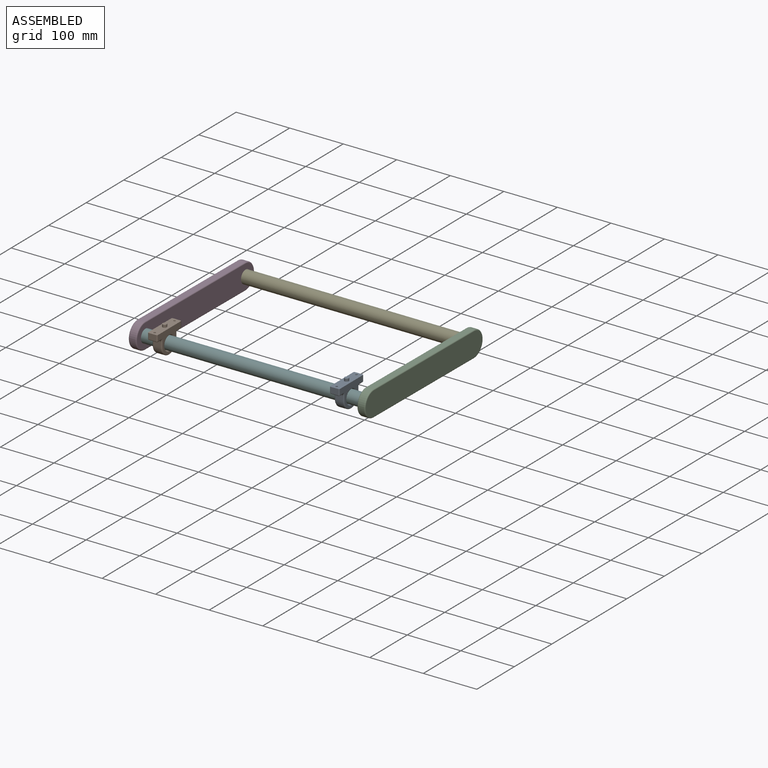
[diagram: assembled view]
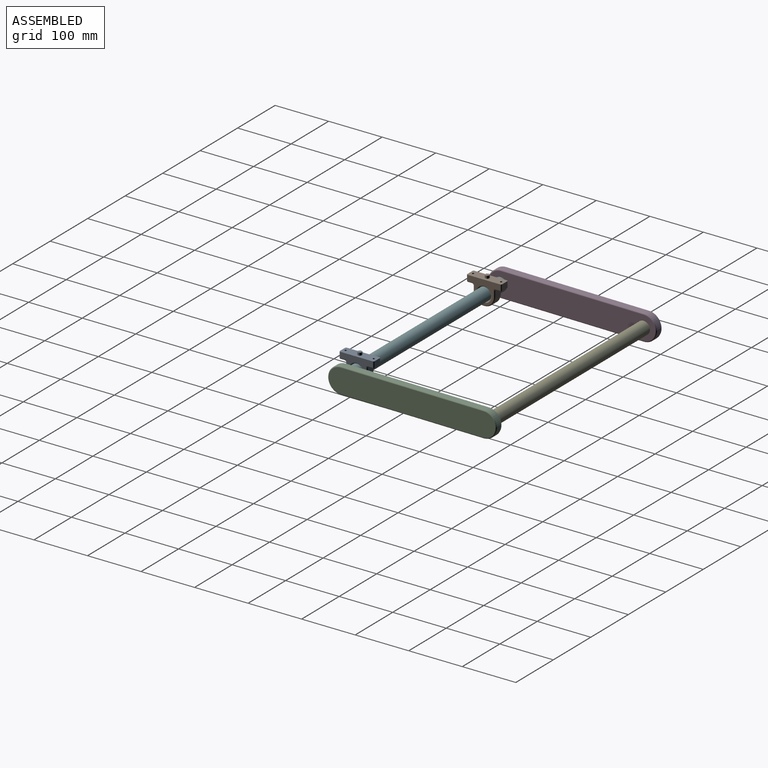
[diagram: assembled view, second angle]
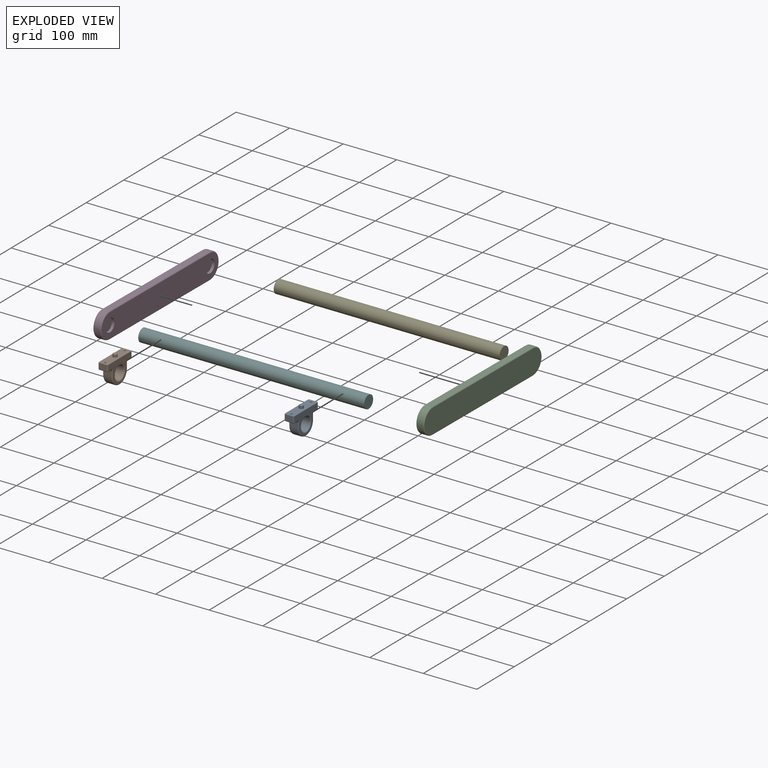
[diagram: exploded view]
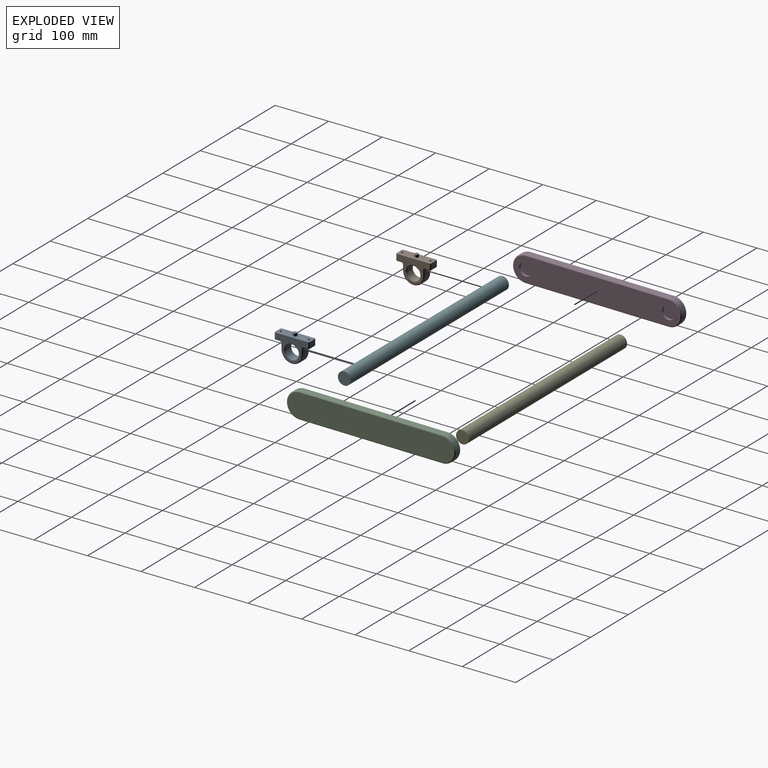
[diagram: exploded view, second angle]
ASSEMBLY  parts=6 mates=3
PART A: 49 faces, bbox 65x18x51.6 mm
  f0: plane 65x18mm, normal (0,0,-1), area 1091.2mm2, adj f1,f7,f9,f10,f11,f13,f14,f19
  f1: plane 14x10.5mm, normal (1,0,0), area 147mm2, adj f0,f25,f30,f31
  f2: plane 14x6.5mm, normal (0,0,1), area 48.9mm2, adj f15,f26,f31,f35,f45,f47
  f3: plane 14x8.9mm, normal (1,0,0), area 120.3mm2, adj f4,f22,f36,f45,f46,f47
  f4: cylinder r=20mm len=40mm, axis (0,1,0), area 879.6mm2, adj f3,f5,f20,f34
  f5: plane 14x8.9mm, normal (-1,0,0), area 120.3mm2, adj f4,f17,f32,f40,f41,f42
  f6: plane 14x6.5mm, normal (0,0,1), area 48.9mm2, adj f16,f18,f23,f29,f40,f42
  f7: plane 14x10.5mm, normal (-1,0,0), area 147mm2, adj f0,f19,f23,f24
  f8: cylinder r=12.5mm len=25mm, axis (0,1,0), area 1099.6mm2, adj f37,f38
  f9: plane 61x43mm, normal (0,-1,0), area 1010.9mm2, adj f0,f17,f18,f19,f20,f22,f25,f26
  f10: plane 61x43mm, normal (0,1,0), area 1010.9mm2, adj f0,f24,f29,f30,f32,f34,f35,f36
  f11: cylinder r=4mm len=8mm, axis (0,0,1), area 125.7mm2, adj f0,f12
  f12: plane 8x8mm, normal (0,0,-1), area 50.3mm2, adj f11
  f13: cylinder r=2mm len=10.5mm, axis (0,0,1), area 131.9mm2, adj f0,f16
  f14: cylinder r=2mm len=10.5mm, axis (0,0,1), area 131.9mm2, adj f0,f15
  f15: cone r=2mm half-angle=45deg, axis (0,0,1), area 53.3mm2, adj f2,f14,f46
  f16: cone r=2mm half-angle=45deg, axis (0,0,1), area 53.3mm2, adj f6,f13,f41
  f17: cylinder r=2mm len=14.5mm, axis (0,0,1), area 33.6mm2, adj f5,f9,f20,f43
  f18: cylinder r=2mm len=12.5mm, axis (1,0,0), area 27.3mm2, adj f6,f9,f21,f43
  f19: cylinder r=2mm len=10.5mm, axis (0,0,1), area 33mm2, adj f0,f7,f9,f21
  f20: torus R=18mm, axis (0,-1,0), area 190.2mm2, adj f4,f9,f17,f22
  f21: sphere r=2mm, area 6.3mm2, adj f18,f19,f23
  f22: cylinder r=2mm len=14.5mm, axis (0,0,-1), area 33.6mm2, adj f3,f9,f20,f48
  f23: cylinder r=2mm len=14mm, axis (0,1,0), area 44mm2, adj f6,f7,f21,f27
  f24: cylinder r=2mm len=10.5mm, axis (0,0,-1), area 33mm2, adj f0,f7,f10,f27
  f25: cylinder r=2mm len=10.5mm, axis (0,0,-1), area 33mm2, adj f0,f1,f9,f28
  f26: cylinder r=2mm len=12.5mm, axis (1,0,0), area 27.3mm2, adj f2,f9,f28,f48
  f27: sphere r=2mm, area 6.3mm2, adj f23,f24,f29
  f28: sphere r=2mm, area 6.3mm2, adj f25,f26,f31
  f29: cylinder r=2mm len=12.5mm, axis (-1,0,0), area 27.3mm2, adj f6,f10,f27,f39
  f30: cylinder r=2mm len=10.5mm, axis (0,0,1), area 33mm2, adj f0,f1,f10,f33
  f31: cylinder r=2mm len=14mm, axis (0,1,0), area 44mm2, adj f1,f2,f28,f33
  f32: cylinder r=2mm len=14.5mm, axis (0,0,-1), area 33.6mm2, adj f5,f10,f34,f39
  f33: sphere r=2mm, area 6.3mm2, adj f30,f31,f35
  f34: torus R=18mm, axis (0,-1,0), area 190.2mm2, adj f4,f10,f32,f36
  f35: cylinder r=2mm len=12.5mm, axis (-1,0,0), area 27.3mm2, adj f2,f10,f33,f44
  f36: cylinder r=2mm len=14.5mm, axis (0,0,1), area 33.6mm2, adj f3,f10,f34,f44
  f37: torus R=14.5mm, axis (0,-1,0), area 261.1mm2, adj f8,f10
  f38: torus R=14.5mm, axis (0,-1,0), area 261.1mm2, adj f8,f9
  f39: bspline ~6x6mm, area 16mm2, adj f29,f32,f40
  f40: cylinder r=4mm len=4mm, axis (0,-1,0), area 23.2mm2, adj f5,f6,f39,f41
  f41: bspline ~7.75x4.36mm, area 33.5mm2, adj f5,f16,f40,f42
  f42: cylinder r=4mm len=4mm, axis (0,-1,0), area 23.2mm2, adj f5,f6,f41,f43
  f43: bspline ~6x6mm, area 16.4mm2, adj f17,f18,f42
  f44: bspline ~6x6mm, area 16.4mm2, adj f35,f36,f45
  f45: cylinder r=4mm len=4mm, axis (0,1,0), area 23.2mm2, adj f2,f3,f44,f46
  f46: bspline ~7.75x4.36mm, area 33.5mm2, adj f3,f15,f45,f47
  f47: cylinder r=4mm len=4mm, axis (0,1,0), area 23.2mm2, adj f2,f3,f46,f48
  f48: bspline ~6x6mm, area 16.4mm2, adj f22,f26,f47
PART B: same geometry as A
PART C: 18 faces, bbox 15x319x52 mm
  f0: plane 267x11mm, normal (0,0,1), area 2937mm2, adj f1,f3,f10,f14
  f1: cylinder r=24mm len=48mm, axis (-1,0,0), area 829.4mm2, adj f0,f2,f12,f16
  f2: plane 267x11mm, normal (0,0,-1), area 2937mm2, adj f1,f3,f13,f17
  f3: cylinder r=24mm len=48mm, axis (-1,0,0), area 829.4mm2, adj f0,f2,f11,f15
  f4: plane 311x44mm, normal (1,0,0), area 12363.8mm2, adj f6,f8,f14,f15,f16,f17
  f5: plane 311x44mm, normal (-1,0,0), area 13268.5mm2, adj f10,f11,f12,f13
  f6: cylinder r=12mm len=24mm, axis (1,0,0), area 377mm2, adj f4,f7
  f7: plane 24x24mm, normal (1,0,0), area 452.4mm2, adj f6
  f8: cylinder r=12mm len=24mm, axis (1,0,0), area 377mm2, adj f4,f9
  f9: plane 24x24mm, normal (1,0,0), area 452.4mm2, adj f8
  f10: cylinder r=2mm len=267mm, axis (0,-1,0), area 838.8mm2, adj f0,f5,f11,f12
  f11: torus R=22mm, axis (1,0,0), area 229.7mm2, adj f3,f5,f10,f13
  f12: torus R=22mm, axis (1,0,0), area 229.7mm2, adj f1,f5,f10,f13
  f13: cylinder r=2mm len=267mm, axis (0,1,0), area 838.8mm2, adj f2,f5,f11,f12
  f14: cylinder r=2mm len=267mm, axis (0,1,0), area 838.8mm2, adj f0,f4,f15,f16
  f15: torus R=22mm, axis (1,0,0), area 229.7mm2, adj f3,f4,f14,f17
  f16: torus R=22mm, axis (1,0,0), area 229.7mm2, adj f1,f4,f14,f17
  f17: cylinder r=2mm len=267mm, axis (0,-1,0), area 838.8mm2, adj f2,f4,f15,f16
PART D: same geometry as C
PART E: 3 faces, bbox 422x24x24 mm
  f0: cylinder r=12mm len=422mm, axis (-1,0,0), area 31818.1mm2, adj f1,f2
  f1: plane 24x24mm, normal (1,0,0), area 452.4mm2, adj f0
  f2: plane 24x24mm, normal (-1,0,0), area 452.4mm2, adj f0
PART F: same geometry as E
PLACE A rot(axis=(0.71,-0.71,0),180deg) t=(159.86,296.75,-20.14)mm
PLACE B rot(axis=(0.71,-0.71,0),180deg) t=(-180.14,296.75,-20.14)mm fixed
PLACE C rot(axis=(0,-1,0),180deg) t=(220.09,431.68,-23.62)mm
PLACE D rot(axis=(-1,0,0),0.5deg) t=(-221.91,431.68,-23.62)mm
PLACE E rot(axis=(-1,0,0),0.5deg) t=(-211.91,563.62,-24.77)mm
PLACE F rot(axis=(-1,0,0),0.5deg) t=(-211.91,296.63,-22.44)mm
MATE fastened C.f3 <-> E.f0  axis (-1,0,0) through (210.09,563.62,-24.77)mm
MATE fastened E.f0 <-> D.f3  axis (-1,0,0) through (-211.91,563.62,-24.77)mm
MATE fastened F.f0 <-> D.f1  axis (-1,0,0) through (-211.91,296.63,-22.44)mm
